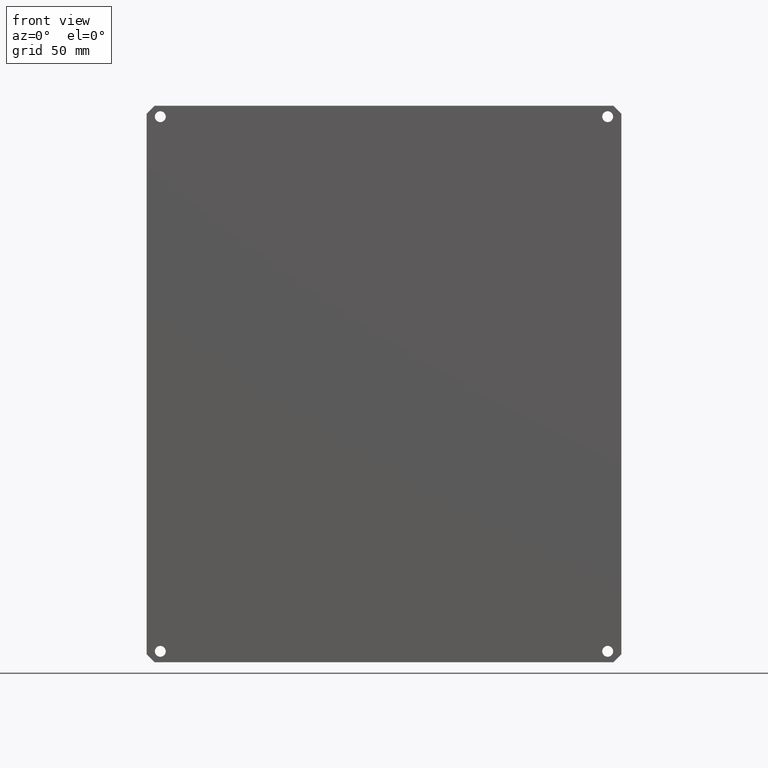
[diagram: clean part render]
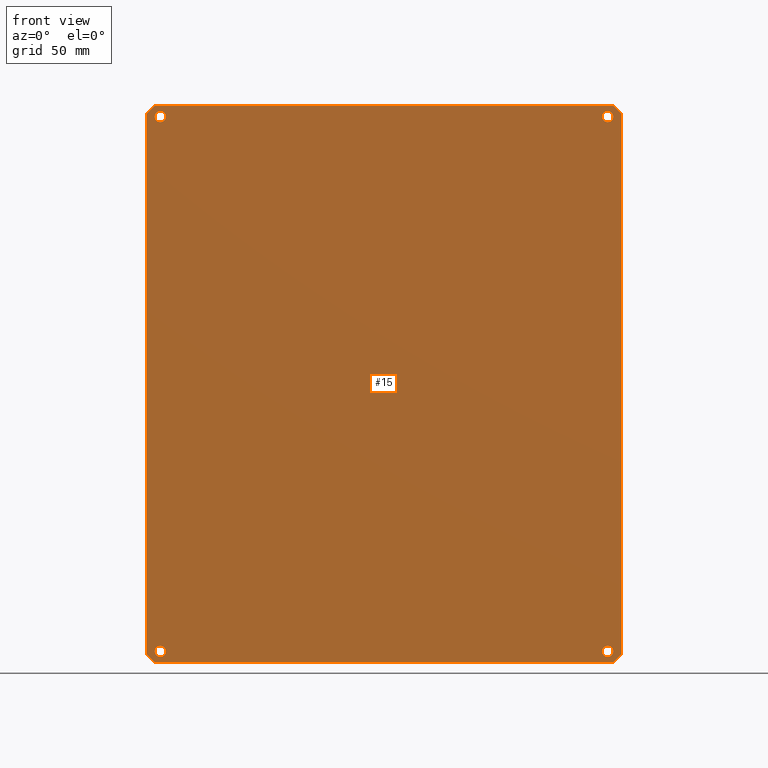
[diagram: same view with one face highlighted and labeled with its STEP entity id]
A machine part, front view. The second image highlights one B-rep face of the part: STEP entity #15.
In plain terms, the highlighted planar face has unit normal (0, 1, 0).
Its self-contained STEP definition (entity closure, byte-faithful):
#7 = CARTESIAN_POINT ( 'NONE',  ( -0.6631477862797078300, -8.261220590614481600, -9.352097330019013600 ) ) ;
#8 = CARTESIAN_POINT ( 'NONE',  ( -11.35814778627970700, -8.261220590614481600, -9.532097330019011500 ) ) ;
#15 = ADVANCED_FACE ( 'NONE', ( #109, #533, #476, #666, #519 ), #451, .F. ) ;
#16 = ORIENTED_EDGE ( 'NONE', *, *, #444, .F. ) ;
#27 = EDGE_CURVE ( 'NONE', #115, #667, #646, .T. ) ;
#30 = EDGE_CURVE ( 'NONE', #647, #268, #94, .T. ) ;
#34 = DIRECTION ( 'NONE',  ( 0.0000000000000000000, 0.0000000000000000000, 1.000000000000000000 ) ) ;
#35 = VERTEX_POINT ( 'NONE', #233 ) ;
#42 = DIRECTION ( 'NONE',  ( 0.0000000000000000000, 1.000000000000000000, 0.0000000000000000000 ) ) ;
#50 = VERTEX_POINT ( 'NONE', #454 ) ;
#61 = ORIENTED_EDGE ( 'NONE', *, *, #30, .T. ) ;
#78 = VECTOR ( 'NONE', #506, 39.37007874015748100 ) ;
#81 = ORIENTED_EDGE ( 'NONE', *, *, #214, .T. ) ;
#85 = AXIS2_PLACEMENT_3D ( 'NONE', #368, #42, #418 ) ;
#87 = VECTOR ( 'NONE', #597, 39.37007874015748900 ) ;
#94 = CIRCLE ( 'NONE', #652, 0.1249999999999999000 ) ;
#101 = VECTOR ( 'NONE', #378, 39.37007874015748900 ) ;
#104 = EDGE_LOOP ( 'NONE', ( #402, #81 ) ) ;
#107 = EDGE_CURVE ( 'NONE', #655, #585, #167, .T. ) ;
#108 = VECTOR ( 'NONE', #465, 39.37007874015748900 ) ;
#109 = FACE_BOUND ( 'NONE', #104, .T. ) ;
#110 = ORIENTED_EDGE ( 'NONE', *, *, #295, .T. ) ;
#115 = VERTEX_POINT ( 'NONE', #188 ) ;
#117 = DIRECTION ( 'NONE',  ( 0.0000000000000000000, 1.000000000000000000, 0.0000000000000000000 ) ) ;
#123 = DIRECTION ( 'NONE',  ( 0.0000000000000000000, 1.000000000000000000, 0.0000000000000000000 ) ) ;
#128 = AXIS2_PLACEMENT_3D ( 'NONE', #296, #277, #257 ) ;
#130 = DIRECTION ( 'NONE',  ( 0.0000000000000000000, 1.000000000000000000, 0.0000000000000000000 ) ) ;
#131 = DIRECTION ( 'NONE',  ( 0.0000000000000000000, 0.0000000000000000000, 1.000000000000000000 ) ) ;
#133 = CARTESIAN_POINT ( 'NONE',  ( -11.53814778627970700, -8.261220590614481600, -9.352097330019008200 ) ) ;
#135 = VERTEX_POINT ( 'NONE', #133 ) ;
#161 = EDGE_CURVE ( 'NONE', #377, #488, #432, .T. ) ;
#163 = AXIS2_PLACEMENT_3D ( 'NONE', #299, #634, #523 ) ;
#166 = CARTESIAN_POINT ( 'NONE',  ( -11.35814778627970700, -8.261220590614481600, 3.217902669980988100 ) ) ;
#167 = CIRCLE ( 'NONE', #85, 0.1249999999999993500 ) ;
#170 = CARTESIAN_POINT ( 'NONE',  ( -11.22564778627971000, -8.261220590614481600, 3.092902669980988100 ) ) ;
#176 = DIRECTION ( 'NONE',  ( 0.0000000000000000000, 1.000000000000000000, 0.0000000000000000000 ) ) ;
#177 = ORIENTED_EDGE ( 'NONE', *, *, #263, .F. ) ;
#188 = CARTESIAN_POINT ( 'NONE',  ( -0.9756477862797050500, -8.261220590614481600, 3.092902669980988100 ) ) ;
#193 = EDGE_CURVE ( 'NONE', #305, #488, #419, .T. ) ;
#196 = EDGE_CURVE ( 'NONE', #35, #50, #524, .T. ) ;
#204 = EDGE_CURVE ( 'NONE', #135, #463, #512, .T. ) ;
#211 = EDGE_LOOP ( 'NONE', ( #61, #435 ) ) ;
#214 = EDGE_CURVE ( 'NONE', #667, #115, #374, .T. ) ;
#217 = LINE ( 'NONE', #545, #78 ) ;
#222 = DIRECTION ( 'NONE',  ( -0.7071067811865453500, -0.0000000000000000000, 0.7071067811865496800 ) ) ;
#230 = ORIENTED_EDGE ( 'NONE', *, *, #107, .T. ) ;
#232 = CARTESIAN_POINT ( 'NONE',  ( -11.53814778627970700, -8.261220590614481600, 3.217902669980988100 ) ) ;
#233 = CARTESIAN_POINT ( 'NONE',  ( -0.9756477862797061600, -8.261220590614481600, -9.407097330019013300 ) ) ;
#237 = EDGE_CURVE ( 'NONE', #50, #35, #654, .T. ) ;
#242 = AXIS2_PLACEMENT_3D ( 'NONE', #608, #130, #530 ) ;
#250 = AXIS2_PLACEMENT_3D ( 'NONE', #497, #176, #548 ) ;
#256 = EDGE_CURVE ( 'NONE', #268, #647, #482, .T. ) ;
#257 = DIRECTION ( 'NONE',  ( 0.0000000000000000000, 0.0000000000000000000, 1.000000000000000000 ) ) ;
#263 = EDGE_CURVE ( 'NONE', #135, #535, #621, .T. ) ;
#268 = VERTEX_POINT ( 'NONE', #661 ) ;
#277 = DIRECTION ( 'NONE',  ( 0.0000000000000000000, 1.000000000000000000, 0.0000000000000000000 ) ) ;
#292 = ORIENTED_EDGE ( 'NONE', *, *, #529, .F. ) ;
#295 = EDGE_CURVE ( 'NONE', #585, #655, #455, .T. ) ;
#296 = CARTESIAN_POINT ( 'NONE',  ( -0.9756477862797061600, -8.261220590614481600, -9.282097330019013300 ) ) ;
#299 = CARTESIAN_POINT ( 'NONE',  ( -11.22564778627971000, -8.261220590614481600, 2.967902669980988100 ) ) ;
#305 = VERTEX_POINT ( 'NONE', #417 ) ;
#306 = CARTESIAN_POINT ( 'NONE',  ( -11.53814778627970700, -8.261220590614481600, -9.532097330019011500 ) ) ;
#309 = CARTESIAN_POINT ( 'NONE',  ( -0.6631477862797078300, -8.261220590614481600, -9.532097330019011500 ) ) ;
#318 = VECTOR ( 'NONE', #222, 39.37007874015748900 ) ;
#320 = DIRECTION ( 'NONE',  ( -1.000000000000000000, -0.0000000000000000000, -0.0000000000000000000 ) ) ;
#322 = ORIENTED_EDGE ( 'NONE', *, *, #204, .T. ) ;
#327 = CARTESIAN_POINT ( 'NONE',  ( -0.8431477862797118700, -8.261220590614481600, 3.217902669980989000 ) ) ;
#335 = DIRECTION ( 'NONE',  ( 8.570503509534944300E-017, 0.0000000000000000000, 1.000000000000000000 ) ) ;
#337 = AXIS2_PLACEMENT_3D ( 'NONE', #499, #398, #376 ) ;
#355 = DIRECTION ( 'NONE',  ( 0.0000000000000000000, 1.000000000000000000, 0.0000000000000000000 ) ) ;
#368 = CARTESIAN_POINT ( 'NONE',  ( -11.22564778627970700, -8.261220590614481600, -9.282097330019011500 ) ) ;
#374 = CIRCLE ( 'NONE', #337, 0.1249999999999999000 ) ;
#376 = DIRECTION ( 'NONE',  ( 0.0000000000000000000, 0.0000000000000000000, 1.000000000000000000 ) ) ;
#377 = VERTEX_POINT ( 'NONE', #486 ) ;
#378 = DIRECTION ( 'NONE',  ( 0.7071067811865516800, -0.0000000000000000000, 0.7071067811865431300 ) ) ;
#383 = EDGE_CURVE ( 'NONE', #562, #535, #532, .T. ) ;
#398 = DIRECTION ( 'NONE',  ( 0.0000000000000000000, 1.000000000000000000, 0.0000000000000000000 ) ) ;
#401 = CARTESIAN_POINT ( 'NONE',  ( -0.8431477862797075500, -8.261220590614481600, 3.217902669980988100 ) ) ;
#402 = ORIENTED_EDGE ( 'NONE', *, *, #27, .T. ) ;
#405 = AXIS2_PLACEMENT_3D ( 'NONE', #644, #123, #131 ) ;
#406 = CARTESIAN_POINT ( 'NONE',  ( -11.53814778627970700, -8.261220590614481600, 3.037902669980989200 ) ) ;
#417 = CARTESIAN_POINT ( 'NONE',  ( -0.8431477862797096500, -8.261220590614481600, -9.532097330019013300 ) ) ;
#418 = DIRECTION ( 'NONE',  ( 0.0000000000000000000, 0.0000000000000000000, 1.000000000000000000 ) ) ;
#419 = LINE ( 'NONE', #7, #101 ) ;
#428 = VERTEX_POINT ( 'NONE', #327 ) ;
#432 = LINE ( 'NONE', #309, #540 ) ;
#435 = ORIENTED_EDGE ( 'NONE', *, *, #256, .T. ) ;
#444 = EDGE_CURVE ( 'NONE', #562, #428, #217, .T. ) ;
#451 = PLANE ( 'NONE',  #539 ) ;
#454 = CARTESIAN_POINT ( 'NONE',  ( -0.9756477862797061600, -8.261220590614481600, -9.157097330019011500 ) ) ;
#455 = CIRCLE ( 'NONE', #242, 0.1249999999999993500 ) ;
#459 = LINE ( 'NONE', #401, #318 ) ;
#463 = VERTEX_POINT ( 'NONE', #665 ) ;
#465 = DIRECTION ( 'NONE',  ( -0.7071067811865516800, -0.0000000000000000000, -0.7071067811865431300 ) ) ;
#476 = FACE_BOUND ( 'NONE', #516, .T. ) ;
#482 = CIRCLE ( 'NONE', #163, 0.1249999999999999000 ) ;
#483 = EDGE_LOOP ( 'NONE', ( #595, #554 ) ) ;
#486 = CARTESIAN_POINT ( 'NONE',  ( -0.6631477862797033900, -8.261220590614481600, 3.037902669980978100 ) ) ;
#488 = VERTEX_POINT ( 'NONE', #587 ) ;
#497 = CARTESIAN_POINT ( 'NONE',  ( -0.9756477862797050500, -8.261220590614481600, 2.967902669980988100 ) ) ;
#499 = CARTESIAN_POINT ( 'NONE',  ( -0.9756477862797050500, -8.261220590614481600, 2.967902669980988100 ) ) ;
#506 = DIRECTION ( 'NONE',  ( 1.000000000000000000, 0.0000000000000000000, 0.0000000000000000000 ) ) ;
#512 = LINE ( 'NONE', #8, #87 ) ;
#516 = EDGE_LOOP ( 'NONE', ( #110, #230 ) ) ;
#518 = VECTOR ( 'NONE', #320, 39.37007874015748100 ) ;
#519 = FACE_OUTER_BOUND ( 'NONE', #622, .T. ) ;
#523 = DIRECTION ( 'NONE',  ( 0.0000000000000000000, 0.0000000000000000000, 1.000000000000000000 ) ) ;
#524 = CIRCLE ( 'NONE', #405, 0.1250000000000004400 ) ;
#529 = EDGE_CURVE ( 'NONE', #305, #463, #609, .T. ) ;
#530 = DIRECTION ( 'NONE',  ( 0.0000000000000000000, 0.0000000000000000000, 1.000000000000000000 ) ) ;
#532 = LINE ( 'NONE', #550, #108 ) ;
#533 = FACE_BOUND ( 'NONE', #211, .T. ) ;
#535 = VERTEX_POINT ( 'NONE', #406 ) ;
#539 = AXIS2_PLACEMENT_3D ( 'NONE', #232, #117, #602 ) ;
#540 = VECTOR ( 'NONE', #619, 39.37007874015748100 ) ;
#545 = CARTESIAN_POINT ( 'NONE',  ( -11.53814778627970700, -8.261220590614481600, 3.217902669980988100 ) ) ;
#548 = DIRECTION ( 'NONE',  ( 0.0000000000000000000, 0.0000000000000000000, 1.000000000000000000 ) ) ;
#550 = CARTESIAN_POINT ( 'NONE',  ( -11.53814778627970700, -8.261220590614481600, 3.037902669980989200 ) ) ;
#554 = ORIENTED_EDGE ( 'NONE', *, *, #196, .T. ) ;
#562 = VERTEX_POINT ( 'NONE', #166 ) ;
#585 = VERTEX_POINT ( 'NONE', #630 ) ;
#587 = CARTESIAN_POINT ( 'NONE',  ( -0.6631477862797078300, -8.261220590614481600, -9.352097330019013600 ) ) ;
#595 = ORIENTED_EDGE ( 'NONE', *, *, #237, .T. ) ;
#597 = DIRECTION ( 'NONE',  ( 0.7071067811865474600, -0.0000000000000000000, -0.7071067811865474600 ) ) ;
#599 = EDGE_CURVE ( 'NONE', #377, #428, #459, .T. ) ;
#602 = DIRECTION ( 'NONE',  ( 0.0000000000000000000, -0.0000000000000000000, 1.000000000000000000 ) ) ;
#603 = VECTOR ( 'NONE', #335, 39.37007874015748100 ) ;
#604 = ORIENTED_EDGE ( 'NONE', *, *, #599, .T. ) ;
#608 = CARTESIAN_POINT ( 'NONE',  ( -11.22564778627970700, -8.261220590614481600, -9.282097330019011500 ) ) ;
#609 = LINE ( 'NONE', #306, #518 ) ;
#614 = CARTESIAN_POINT ( 'NONE',  ( -11.22564778627970700, -8.261220590614481600, -9.407097330019011500 ) ) ;
#619 = DIRECTION ( 'NONE',  ( -1.714100701906988900E-016, -0.0000000000000000000, -1.000000000000000000 ) ) ;
#621 = LINE ( 'NONE', #643, #603 ) ;
#622 = EDGE_LOOP ( 'NONE', ( #16, #648, #177, #322, #292, #657, #631, #604 ) ) ;
#630 = CARTESIAN_POINT ( 'NONE',  ( -11.22564778627970700, -8.261220590614481600, -9.157097330019011500 ) ) ;
#631 = ORIENTED_EDGE ( 'NONE', *, *, #161, .F. ) ;
#634 = DIRECTION ( 'NONE',  ( 0.0000000000000000000, 1.000000000000000000, 0.0000000000000000000 ) ) ;
#643 = CARTESIAN_POINT ( 'NONE',  ( -11.53814778627970700, -8.261220590614481600, -9.532097330019011500 ) ) ;
#644 = CARTESIAN_POINT ( 'NONE',  ( -0.9756477862797061600, -8.261220590614481600, -9.282097330019013300 ) ) ;
#646 = CIRCLE ( 'NONE', #250, 0.1249999999999999000 ) ;
#647 = VERTEX_POINT ( 'NONE', #170 ) ;
#648 = ORIENTED_EDGE ( 'NONE', *, *, #383, .T. ) ;
#652 = AXIS2_PLACEMENT_3D ( 'NONE', #660, #355, #34 ) ;
#654 = CIRCLE ( 'NONE', #128, 0.1250000000000004400 ) ;
#655 = VERTEX_POINT ( 'NONE', #614 ) ;
#657 = ORIENTED_EDGE ( 'NONE', *, *, #193, .T. ) ;
#659 = CARTESIAN_POINT ( 'NONE',  ( -0.9756477862797050500, -8.261220590614481600, 2.842902669980988100 ) ) ;
#660 = CARTESIAN_POINT ( 'NONE',  ( -11.22564778627971000, -8.261220590614481600, 2.967902669980988100 ) ) ;
#661 = CARTESIAN_POINT ( 'NONE',  ( -11.22564778627971000, -8.261220590614481600, 2.842902669980988100 ) ) ;
#665 = CARTESIAN_POINT ( 'NONE',  ( -11.35814778627970700, -8.261220590614481600, -9.532097330019011500 ) ) ;
#666 = FACE_BOUND ( 'NONE', #483, .T. ) ;
#667 = VERTEX_POINT ( 'NONE', #659 ) ;